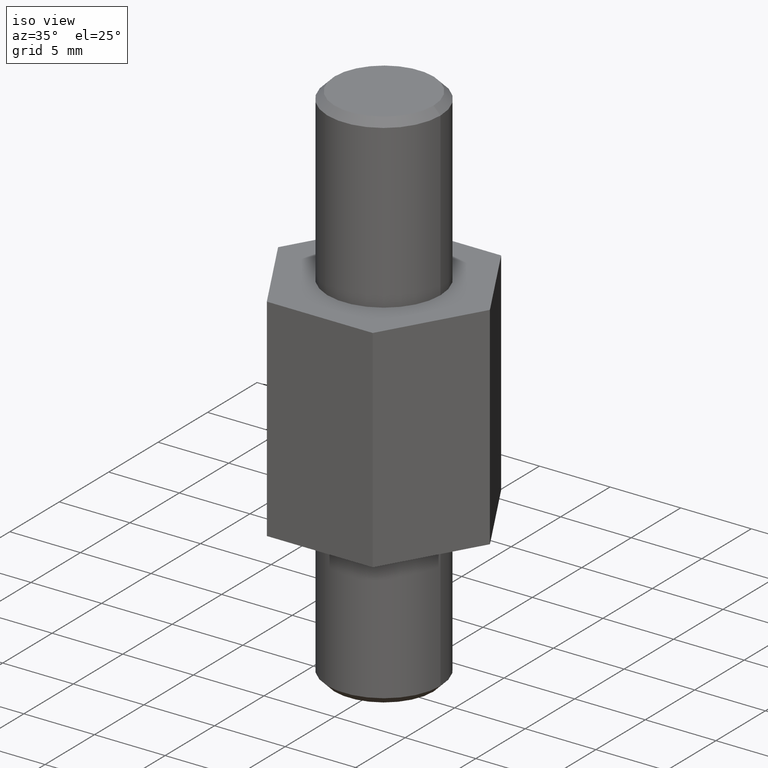
[diagram: clean part render]
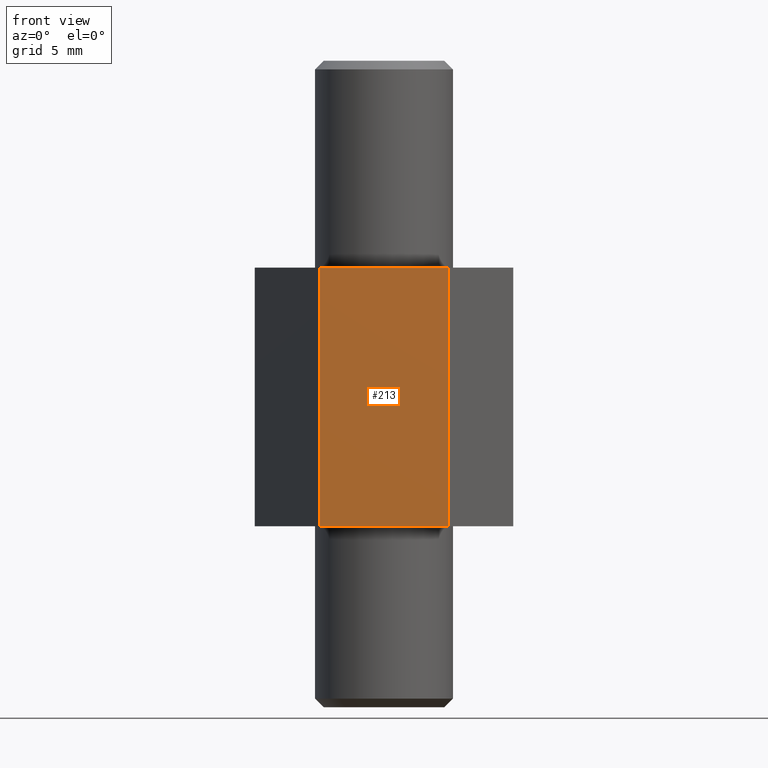
[diagram: tour spotlight — one face highlighted and labeled with its STEP entity id]
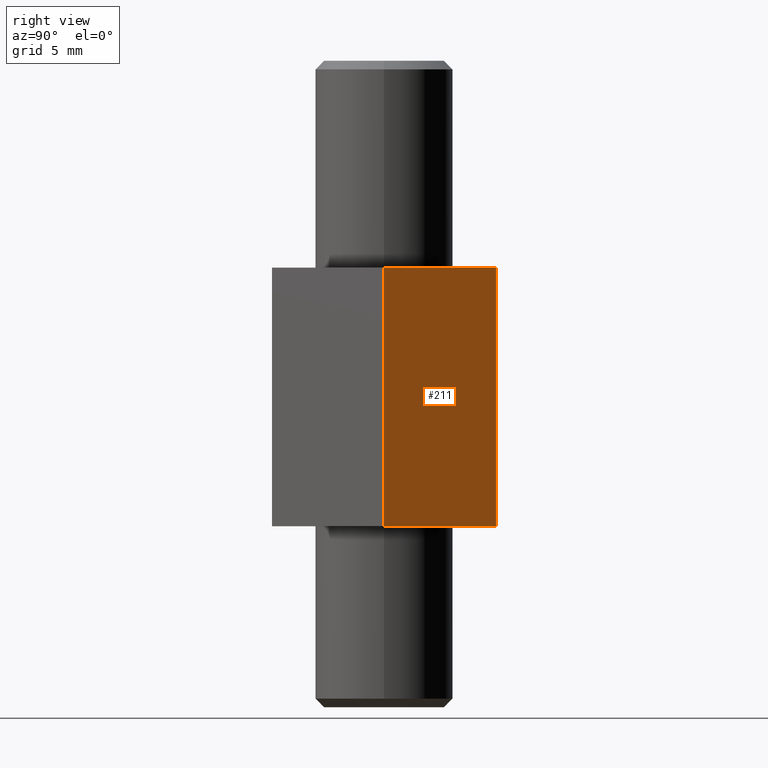
[diagram: tour spotlight — one face highlighted and labeled with its STEP entity id]
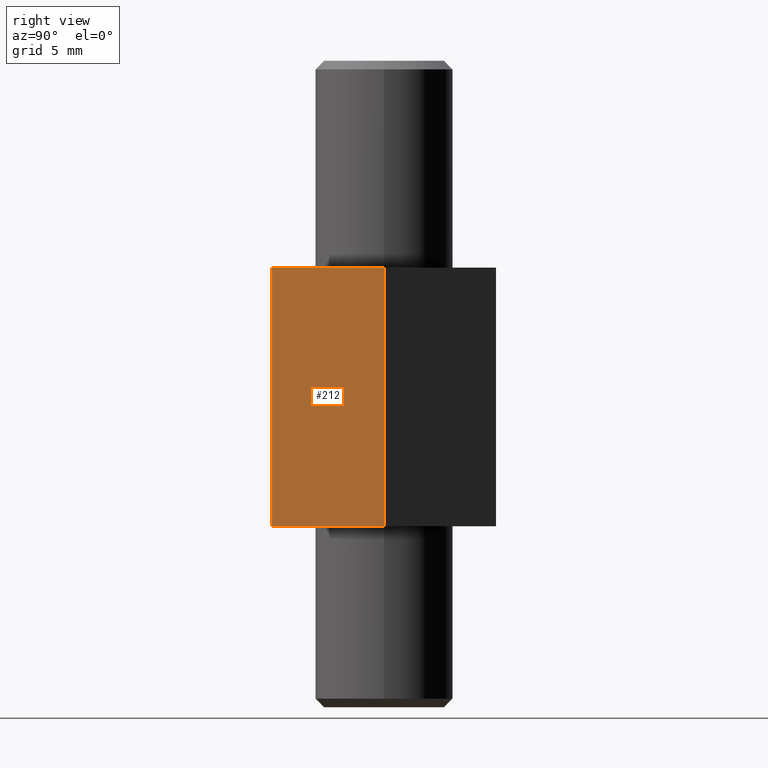
[diagram: tour spotlight — one face highlighted and labeled with its STEP entity id]
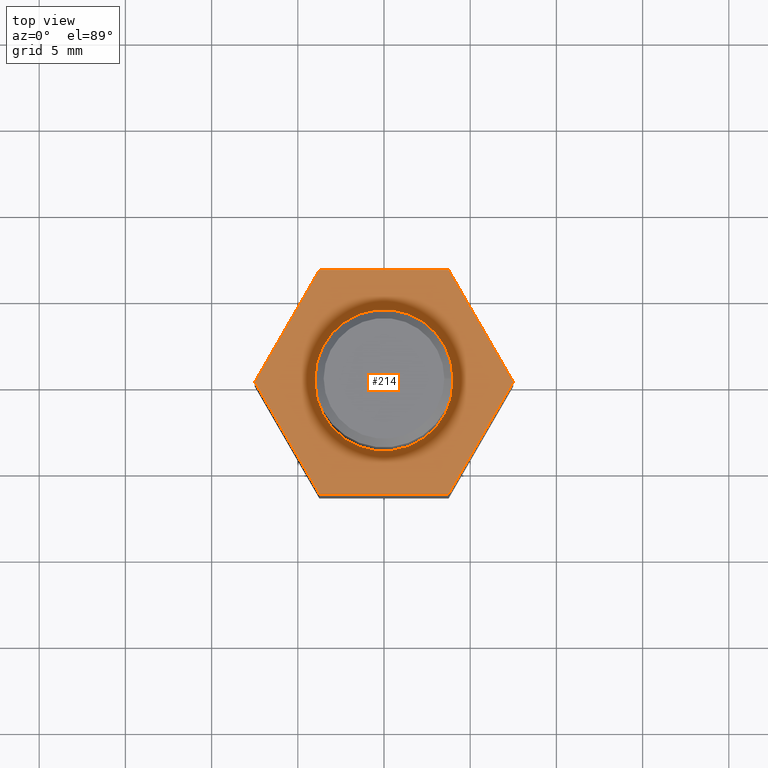
[diagram: tour spotlight — one face highlighted and labeled with its STEP entity id]
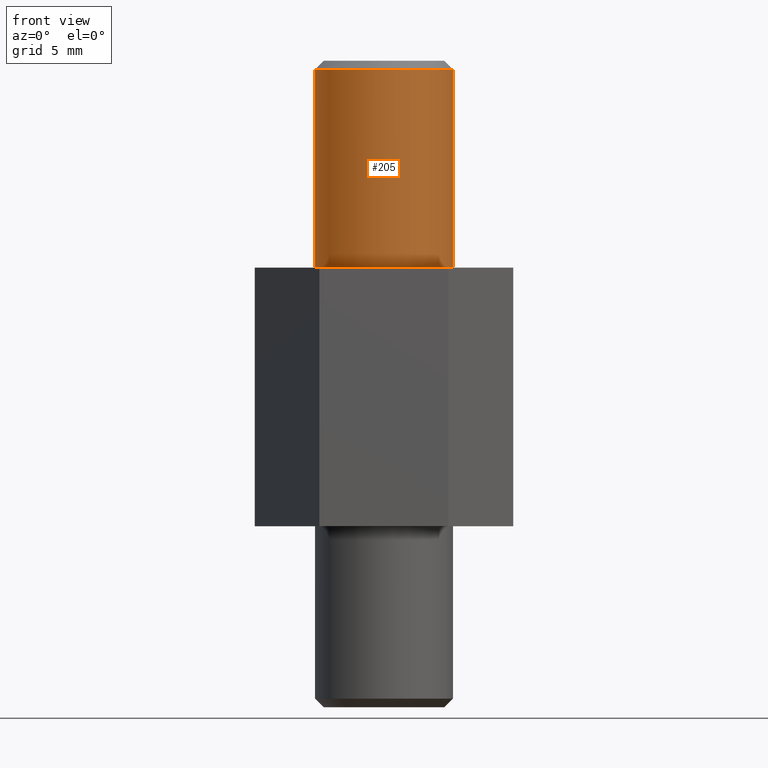
[diagram: tour spotlight — one face highlighted and labeled with its STEP entity id]
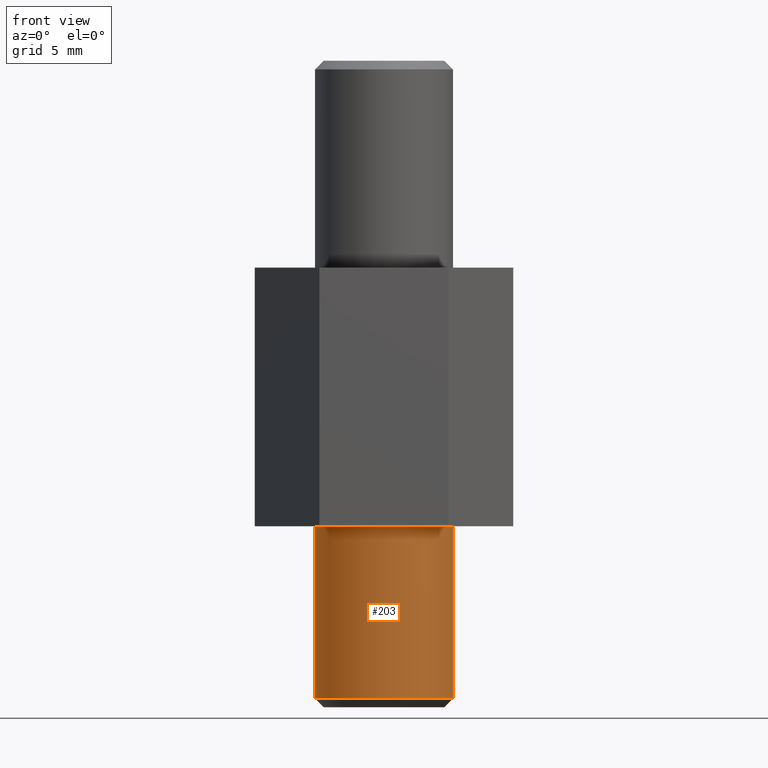
[diagram: tour spotlight — one face highlighted and labeled with its STEP entity id]
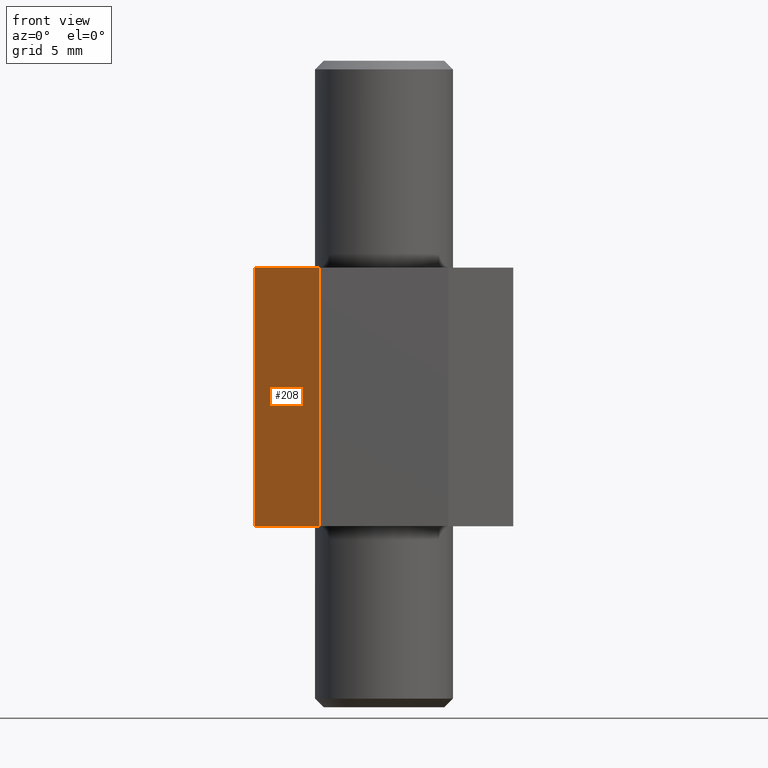
[diagram: tour spotlight — one face highlighted and labeled with its STEP entity id]
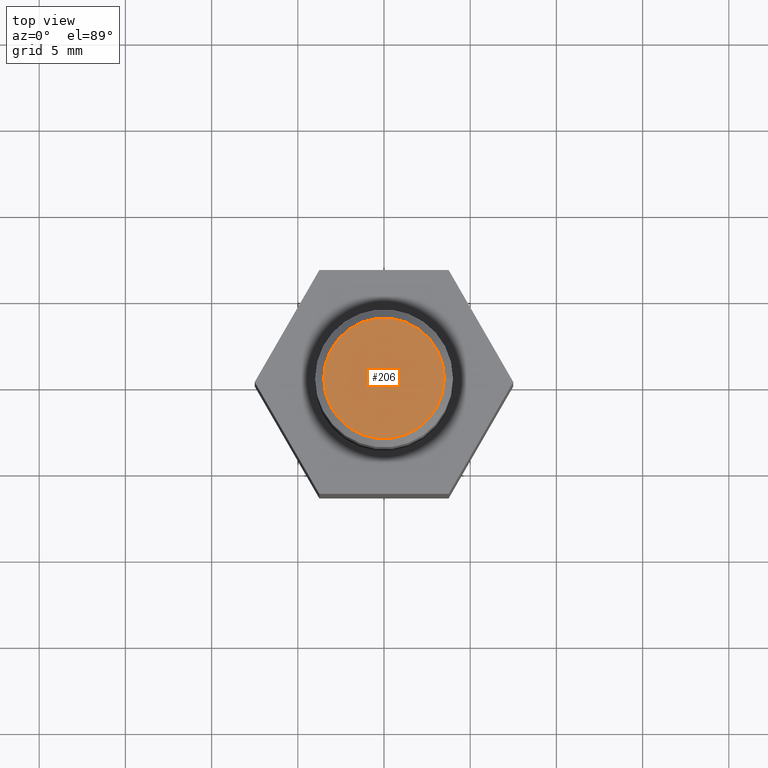
[diagram: tour spotlight — one face highlighted and labeled with its STEP entity id]
A machine part: a face-by-face anatomy tour. The part has 14 B-rep faces; the first image is the clean iso view, then the 8 largest visible faces are spotlighted one at a time (largest first), each with its STEP entity span.

Face 1 — front view, entity #213. In plain terms, the highlighted planar face has unit normal (-0, -1, 0).
Definition (entity closure, byte-faithful):
#15=LINE('',#319,#33);
#21=LINE('',#331,#39);
#31=LINE('',#350,#49);
#32=LINE('',#352,#50);
#33=VECTOR('',#265,7.5);
#39=VECTOR('',#273,15.);
#49=VECTOR('',#291,15.);
#50=VECTOR('',#294,7.5);
#61=PLANE('',#235);
#81=FACE_OUTER_BOUND('',#100,.T.);
#100=EDGE_LOOP('',(#188,#189,#190,#191));
#115=VERTEX_POINT('',#317);
#116=VERTEX_POINT('',#318);
#121=VERTEX_POINT('',#330);
#126=VERTEX_POINT('',#348);
#133=EDGE_CURVE('',#115,#116,#15,.T.);
#139=EDGE_CURVE('',#116,#121,#21,.T.);
#149=EDGE_CURVE('',#115,#126,#31,.T.);
#150=EDGE_CURVE('',#121,#126,#32,.T.);
#188=ORIENTED_EDGE('',*,*,#133,.F.);
#189=ORIENTED_EDGE('',*,*,#149,.T.);
#190=ORIENTED_EDGE('',*,*,#150,.F.);
#191=ORIENTED_EDGE('',*,*,#139,.F.);
#213=ADVANCED_FACE('',(#81),#61,.T.);
#235=AXIS2_PLACEMENT_3D('',#351,#292,#293);
#265=DIRECTION('',(-1.,1.48029736616688E-16,0.));
#273=DIRECTION('',(0.,0.,1.));
#291=DIRECTION('',(0.,0.,1.));
#292=DIRECTION('center_axis',(-1.48029736616688E-16,-1.,0.));
#293=DIRECTION('ref_axis',(1.,-1.77635683940025E-16,0.));
#294=DIRECTION('',(1.,-1.48029736616688E-16,0.));
#317=CARTESIAN_POINT('',(3.75,-6.49519052838329,5.25));
#318=CARTESIAN_POINT('',(-3.75,-6.49519052838329,5.25));
#319=CARTESIAN_POINT('',(3.75,-6.49519052838329,5.25));
#330=CARTESIAN_POINT('',(-3.75,-6.49519052838329,20.25));
#331=CARTESIAN_POINT('',(-3.75,-6.49519052838329,5.25));
#348=CARTESIAN_POINT('',(3.75,-6.49519052838329,20.25));
#350=CARTESIAN_POINT('',(3.75,-6.49519052838329,5.25));
#351=CARTESIAN_POINT('Origin',(-3.75,-6.49519052838329,5.25));
#352=CARTESIAN_POINT('',(3.75,-6.49519052838329,20.25));

Face 2 — right view, entity #211. In plain terms, the highlighted planar face has unit normal (0.866, 0.5, 0).
Definition (entity closure, byte-faithful):
#19=LINE('',#327,#37);
#27=LINE('',#342,#45);
#28=LINE('',#345,#46);
#29=LINE('',#346,#47);
#37=VECTOR('',#269,7.5);
#45=VECTOR('',#283,15.);
#46=VECTOR('',#286,7.5);
#47=VECTOR('',#287,15.);
#59=PLANE('',#233);
#79=FACE_OUTER_BOUND('',#98,.T.);
#98=EDGE_LOOP('',(#180,#181,#182,#183));
#119=VERTEX_POINT('',#324);
#120=VERTEX_POINT('',#326);
#124=VERTEX_POINT('',#340);
#125=VERTEX_POINT('',#344);
#137=EDGE_CURVE('',#119,#120,#19,.T.);
#145=EDGE_CURVE('',#119,#124,#27,.T.);
#146=EDGE_CURVE('',#125,#124,#28,.T.);
#147=EDGE_CURVE('',#120,#125,#29,.T.);
#180=ORIENTED_EDGE('',*,*,#137,.F.);
#181=ORIENTED_EDGE('',*,*,#145,.T.);
#182=ORIENTED_EDGE('',*,*,#146,.F.);
#183=ORIENTED_EDGE('',*,*,#147,.F.);
#211=ADVANCED_FACE('',(#79),#59,.T.);
#233=AXIS2_PLACEMENT_3D('',#343,#284,#285);
#269=DIRECTION('',(0.500000000000001,-0.866025403784438,0.));
#283=DIRECTION('',(0.,0.,1.));
#284=DIRECTION('center_axis',(0.866025403784438,0.500000000000001,0.));
#285=DIRECTION('ref_axis',(-0.5,0.866025403784438,0.));
#286=DIRECTION('',(-0.500000000000001,0.866025403784438,0.));
#287=DIRECTION('',(0.,0.,1.));
#324=CARTESIAN_POINT('',(3.75,6.49519052838329,5.25));
#326=CARTESIAN_POINT('',(7.5,4.16490421173959E-15,5.25));
#327=CARTESIAN_POINT('',(3.75,6.49519052838329,5.25));
#340=CARTESIAN_POINT('',(3.75,6.49519052838329,20.25));
#342=CARTESIAN_POINT('',(3.75,6.49519052838329,5.25));
#343=CARTESIAN_POINT('Origin',(7.5,4.44089209850063E-15,5.25));
#344=CARTESIAN_POINT('',(7.5,4.44089209850063E-15,20.25));
#345=CARTESIAN_POINT('',(3.75,6.49519052838329,20.25));
#346=CARTESIAN_POINT('',(7.5,4.16490421173959E-15,5.25));

Face 3 — right view, entity #212. In plain terms, the highlighted planar face has unit normal (0.866, -0.5, 0).
Definition (entity closure, byte-faithful):
#20=LINE('',#328,#38);
#29=LINE('',#346,#47);
#30=LINE('',#349,#48);
#31=LINE('',#350,#49);
#38=VECTOR('',#270,7.50000000000001);
#47=VECTOR('',#287,15.);
#48=VECTOR('',#290,7.50000000000001);
#49=VECTOR('',#291,15.);
#60=PLANE('',#234);
#80=FACE_OUTER_BOUND('',#99,.T.);
#99=EDGE_LOOP('',(#184,#185,#186,#187));
#115=VERTEX_POINT('',#317);
#120=VERTEX_POINT('',#326);
#125=VERTEX_POINT('',#344);
#126=VERTEX_POINT('',#348);
#138=EDGE_CURVE('',#120,#115,#20,.T.);
#147=EDGE_CURVE('',#120,#125,#29,.T.);
#148=EDGE_CURVE('',#126,#125,#30,.T.);
#149=EDGE_CURVE('',#115,#126,#31,.T.);
#184=ORIENTED_EDGE('',*,*,#138,.F.);
#185=ORIENTED_EDGE('',*,*,#147,.T.);
#186=ORIENTED_EDGE('',*,*,#148,.F.);
#187=ORIENTED_EDGE('',*,*,#149,.F.);
#212=ADVANCED_FACE('',(#80),#60,.T.);
#234=AXIS2_PLACEMENT_3D('',#347,#288,#289);
#270=DIRECTION('',(-0.5,-0.866025403784439,0.));
#287=DIRECTION('',(0.,0.,1.));
#288=DIRECTION('center_axis',(0.866025403784439,-0.5,0.));
#289=DIRECTION('ref_axis',(0.5,0.866025403784439,0.));
#290=DIRECTION('',(0.5,0.866025403784439,0.));
#291=DIRECTION('',(0.,0.,1.));
#317=CARTESIAN_POINT('',(3.75,-6.49519052838329,5.25));
#326=CARTESIAN_POINT('',(7.5,4.16490421173959E-15,5.25));
#328=CARTESIAN_POINT('',(7.5,4.16490421173959E-15,5.25));
#344=CARTESIAN_POINT('',(7.5,4.44089209850063E-15,20.25));
#346=CARTESIAN_POINT('',(7.5,4.16490421173959E-15,5.25));
#347=CARTESIAN_POINT('Origin',(3.75,-6.49519052838329,5.25));
#348=CARTESIAN_POINT('',(3.75,-6.49519052838329,20.25));
#349=CARTESIAN_POINT('',(7.5,4.16490421173959E-15,20.25));
#350=CARTESIAN_POINT('',(3.75,-6.49519052838329,5.25));

Face 4 — top view, entity #214. In plain terms, the highlighted planar face has unit normal (0, 0, 1).
Definition (entity closure, byte-faithful):
#22=LINE('',#333,#40);
#24=LINE('',#337,#42);
#26=LINE('',#341,#44);
#28=LINE('',#345,#46);
#30=LINE('',#349,#48);
#32=LINE('',#352,#50);
#40=VECTOR('',#274,7.5);
#42=VECTOR('',#278,7.5);
#44=VECTOR('',#282,7.5);
#46=VECTOR('',#286,7.5);
#48=VECTOR('',#290,7.50000000000001);
#50=VECTOR('',#294,7.5);
#62=PLANE('',#236);
#68=FACE_BOUND('',#102,.T.);
#82=FACE_OUTER_BOUND('',#101,.T.);
#101=EDGE_LOOP('',(#192,#193,#194,#195,#196,#197));
#102=EDGE_LOOP('',(#198));
#108=CIRCLE('',#227,4.);
#114=VERTEX_POINT('',#313);
#121=VERTEX_POINT('',#330);
#122=VERTEX_POINT('',#332);
#123=VERTEX_POINT('',#336);
#124=VERTEX_POINT('',#340);
#125=VERTEX_POINT('',#344);
#126=VERTEX_POINT('',#348);
#132=EDGE_CURVE('',#114,#114,#108,.T.);
#140=EDGE_CURVE('',#122,#121,#22,.T.);
#142=EDGE_CURVE('',#123,#122,#24,.T.);
#144=EDGE_CURVE('',#124,#123,#26,.T.);
#146=EDGE_CURVE('',#125,#124,#28,.T.);
#148=EDGE_CURVE('',#126,#125,#30,.T.);
#150=EDGE_CURVE('',#121,#126,#32,.T.);
#192=ORIENTED_EDGE('',*,*,#150,.T.);
#193=ORIENTED_EDGE('',*,*,#148,.T.);
#194=ORIENTED_EDGE('',*,*,#146,.T.);
#195=ORIENTED_EDGE('',*,*,#144,.T.);
#196=ORIENTED_EDGE('',*,*,#142,.T.);
#197=ORIENTED_EDGE('',*,*,#140,.T.);
#198=ORIENTED_EDGE('',*,*,#132,.T.);
#214=ADVANCED_FACE('',(#82,#68),#62,.T.);
#227=AXIS2_PLACEMENT_3D('',#314,#259,#260);
#236=AXIS2_PLACEMENT_3D('',#353,#295,#296);
#259=DIRECTION('center_axis',(0.,0.,-1.));
#260=DIRECTION('ref_axis',(-1.,0.,0.));
#274=DIRECTION('',(0.5,-0.866025403784439,0.));
#278=DIRECTION('',(-0.5,-0.866025403784438,0.));
#282=DIRECTION('',(-1.,0.,0.));
#286=DIRECTION('',(-0.500000000000001,0.866025403784438,0.));
#290=DIRECTION('',(0.5,0.866025403784439,0.));
#294=DIRECTION('',(1.,-1.48029736616688E-16,0.));
#295=DIRECTION('center_axis',(0.,0.,1.));
#296=DIRECTION('ref_axis',(1.,0.,0.));
#313=CARTESIAN_POINT('',(4.,4.89858719658941E-16,20.25));
#314=CARTESIAN_POINT('Origin',(0.,0.,20.25));
#330=CARTESIAN_POINT('',(-3.75,-6.49519052838329,20.25));
#332=CARTESIAN_POINT('',(-7.5,0.,20.25));
#333=CARTESIAN_POINT('',(-3.75,-6.49519052838329,20.25));
#336=CARTESIAN_POINT('',(-3.75,6.49519052838329,20.25));
#337=CARTESIAN_POINT('',(-7.5,0.,20.25));
#340=CARTESIAN_POINT('',(3.75,6.49519052838329,20.25));
#341=CARTESIAN_POINT('',(-3.75,6.49519052838329,20.25));
#344=CARTESIAN_POINT('',(7.5,4.44089209850063E-15,20.25));
#345=CARTESIAN_POINT('',(3.75,6.49519052838329,20.25));
#348=CARTESIAN_POINT('',(3.75,-6.49519052838329,20.25));
#349=CARTESIAN_POINT('',(7.5,4.16490421173959E-15,20.25));
#352=CARTESIAN_POINT('',(3.75,-6.49519052838329,20.25));
#353=CARTESIAN_POINT('Origin',(0.,0.,20.25));

Face 5 — front view, entity #205. In plain terms, the highlighted cylindrical surface (bore or boss wall) has radius 4 mm, axis along (0, 0, 1).
Definition (entity closure, byte-faithful):
#52=CYLINDRICAL_SURFACE('',#226,4.);
#66=FACE_BOUND('',#91,.T.);
#73=FACE_OUTER_BOUND('',#90,.T.);
#90=EDGE_LOOP('',(#158));
#91=EDGE_LOOP('',(#159));
#106=CIRCLE('',#224,4.);
#108=CIRCLE('',#227,4.);
#112=VERTEX_POINT('',#308);
#114=VERTEX_POINT('',#313);
#130=EDGE_CURVE('',#112,#112,#106,.T.);
#132=EDGE_CURVE('',#114,#114,#108,.T.);
#158=ORIENTED_EDGE('',*,*,#132,.F.);
#159=ORIENTED_EDGE('',*,*,#130,.F.);
#205=ADVANCED_FACE('',(#73,#66),#52,.T.);
#224=AXIS2_PLACEMENT_3D('',#309,#253,#254);
#226=AXIS2_PLACEMENT_3D('',#312,#257,#258);
#227=AXIS2_PLACEMENT_3D('',#314,#259,#260);
#253=DIRECTION('center_axis',(0.,0.,1.));
#254=DIRECTION('ref_axis',(-1.,0.,0.));
#257=DIRECTION('center_axis',(0.,0.,1.));
#258=DIRECTION('ref_axis',(-1.,0.,0.));
#259=DIRECTION('center_axis',(0.,0.,-1.));
#260=DIRECTION('ref_axis',(-1.,0.,0.));
#308=CARTESIAN_POINT('',(4.,4.89858719658941E-16,31.75));
#309=CARTESIAN_POINT('Origin',(0.,0.,31.75));
#312=CARTESIAN_POINT('Origin',(0.,0.,20.25));
#313=CARTESIAN_POINT('',(4.,4.89858719658941E-16,20.25));
#314=CARTESIAN_POINT('Origin',(0.,0.,20.25));

Face 6 — front view, entity #203. In plain terms, the highlighted cylindrical surface (bore or boss wall) has radius 4 mm, axis along (0, 0, 1).
Definition (entity closure, byte-faithful):
#51=CYLINDRICAL_SURFACE('',#221,4.);
#64=FACE_BOUND('',#87,.T.);
#71=FACE_OUTER_BOUND('',#86,.T.);
#86=EDGE_LOOP('',(#154));
#87=EDGE_LOOP('',(#155));
#103=CIRCLE('',#218,4.);
#105=CIRCLE('',#222,4.);
#109=VERTEX_POINT('',#299);
#111=VERTEX_POINT('',#305);
#127=EDGE_CURVE('',#109,#109,#103,.T.);
#129=EDGE_CURVE('',#111,#111,#105,.T.);
#154=ORIENTED_EDGE('',*,*,#129,.F.);
#155=ORIENTED_EDGE('',*,*,#127,.F.);
#203=ADVANCED_FACE('',(#71,#64),#51,.T.);
#218=AXIS2_PLACEMENT_3D('',#300,#241,#242);
#221=AXIS2_PLACEMENT_3D('',#304,#247,#248);
#222=AXIS2_PLACEMENT_3D('',#306,#249,#250);
#241=DIRECTION('center_axis',(0.,0.,-1.));
#242=DIRECTION('ref_axis',(-1.,0.,0.));
#247=DIRECTION('center_axis',(0.,0.,1.));
#248=DIRECTION('ref_axis',(-1.,0.,0.));
#249=DIRECTION('center_axis',(0.,0.,1.));
#250=DIRECTION('ref_axis',(-1.,0.,0.));
#299=CARTESIAN_POINT('',(4.,-4.89858719658941E-16,-4.75));
#300=CARTESIAN_POINT('Origin',(0.,0.,-4.75));
#304=CARTESIAN_POINT('Origin',(0.,0.,0.));
#305=CARTESIAN_POINT('',(4.,4.89858719658941E-16,5.25));
#306=CARTESIAN_POINT('Origin',(0.,0.,5.25));

Face 7 — front view, entity #208. In plain terms, the highlighted planar face has unit normal (-0.866, -0.5, 0).
Definition (entity closure, byte-faithful):
#16=LINE('',#321,#34);
#21=LINE('',#331,#39);
#22=LINE('',#333,#40);
#23=LINE('',#334,#41);
#34=VECTOR('',#266,7.5);
#39=VECTOR('',#273,15.);
#40=VECTOR('',#274,7.5);
#41=VECTOR('',#275,15.);
#56=PLANE('',#230);
#76=FACE_OUTER_BOUND('',#95,.T.);
#95=EDGE_LOOP('',(#168,#169,#170,#171));
#116=VERTEX_POINT('',#318);
#117=VERTEX_POINT('',#320);
#121=VERTEX_POINT('',#330);
#122=VERTEX_POINT('',#332);
#134=EDGE_CURVE('',#116,#117,#16,.T.);
#139=EDGE_CURVE('',#116,#121,#21,.T.);
#140=EDGE_CURVE('',#122,#121,#22,.T.);
#141=EDGE_CURVE('',#117,#122,#23,.T.);
#168=ORIENTED_EDGE('',*,*,#134,.F.);
#169=ORIENTED_EDGE('',*,*,#139,.T.);
#170=ORIENTED_EDGE('',*,*,#140,.F.);
#171=ORIENTED_EDGE('',*,*,#141,.F.);
#208=ADVANCED_FACE('',(#76),#56,.T.);
#230=AXIS2_PLACEMENT_3D('',#329,#271,#272);
#266=DIRECTION('',(-0.5,0.866025403784439,0.));
#271=DIRECTION('center_axis',(-0.866025403784439,-0.5,0.));
#272=DIRECTION('ref_axis',(0.5,-0.866025403784439,0.));
#273=DIRECTION('',(0.,0.,1.));
#274=DIRECTION('',(0.5,-0.866025403784439,0.));
#275=DIRECTION('',(0.,0.,1.));
#318=CARTESIAN_POINT('',(-3.75,-6.49519052838329,5.25));
#320=CARTESIAN_POINT('',(-7.5,0.,5.25));
#321=CARTESIAN_POINT('',(-3.75,-6.49519052838329,5.25));
#329=CARTESIAN_POINT('Origin',(-7.5,1.11022302462516E-15,5.25));
#330=CARTESIAN_POINT('',(-3.75,-6.49519052838329,20.25));
#331=CARTESIAN_POINT('',(-3.75,-6.49519052838329,5.25));
#332=CARTESIAN_POINT('',(-7.5,0.,20.25));
#333=CARTESIAN_POINT('',(-3.75,-6.49519052838329,20.25));
#334=CARTESIAN_POINT('',(-7.5,0.,5.25));

Face 8 — top view, entity #206. In plain terms, the highlighted planar face has unit normal (0, 0, 1).
Definition (entity closure, byte-faithful):
#54=PLANE('',#228);
#74=FACE_OUTER_BOUND('',#92,.T.);
#92=EDGE_LOOP('',(#160));
#107=CIRCLE('',#225,3.5);
#113=VERTEX_POINT('',#310);
#131=EDGE_CURVE('',#113,#113,#107,.T.);
#160=ORIENTED_EDGE('',*,*,#131,.F.);
#206=ADVANCED_FACE('',(#74),#54,.T.);
#225=AXIS2_PLACEMENT_3D('',#311,#255,#256);
#228=AXIS2_PLACEMENT_3D('',#315,#261,#262);
#255=DIRECTION('center_axis',(0.,0.,-1.));
#256=DIRECTION('ref_axis',(-1.,0.,0.));
#261=DIRECTION('center_axis',(0.,0.,1.));
#262=DIRECTION('ref_axis',(1.,0.,0.));
#310=CARTESIAN_POINT('',(3.5,-4.28626379701574E-16,32.25));
#311=CARTESIAN_POINT('Origin',(0.,0.,32.25));
#315=CARTESIAN_POINT('Origin',(-2.72118023435153E-16,0.,32.25));